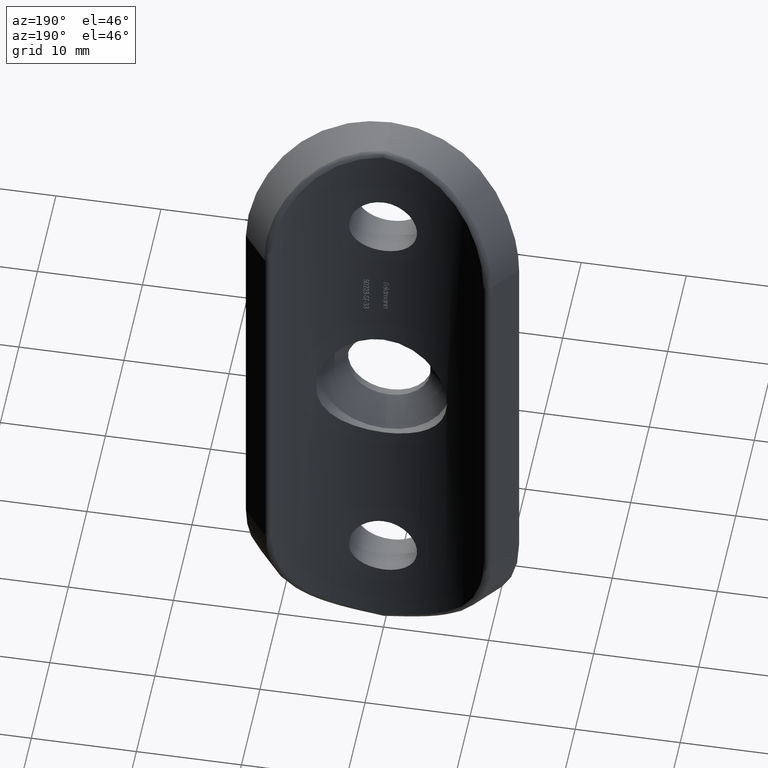
[diagram: clean part render]
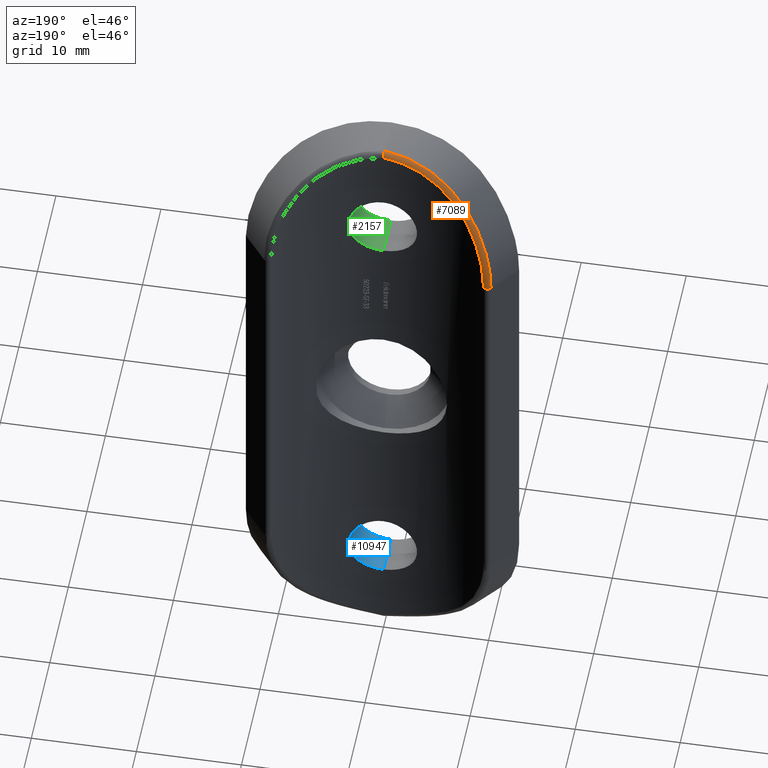
[diagram: same view with three faces highlighted in distinct colors, each labeled with its STEP entity id]
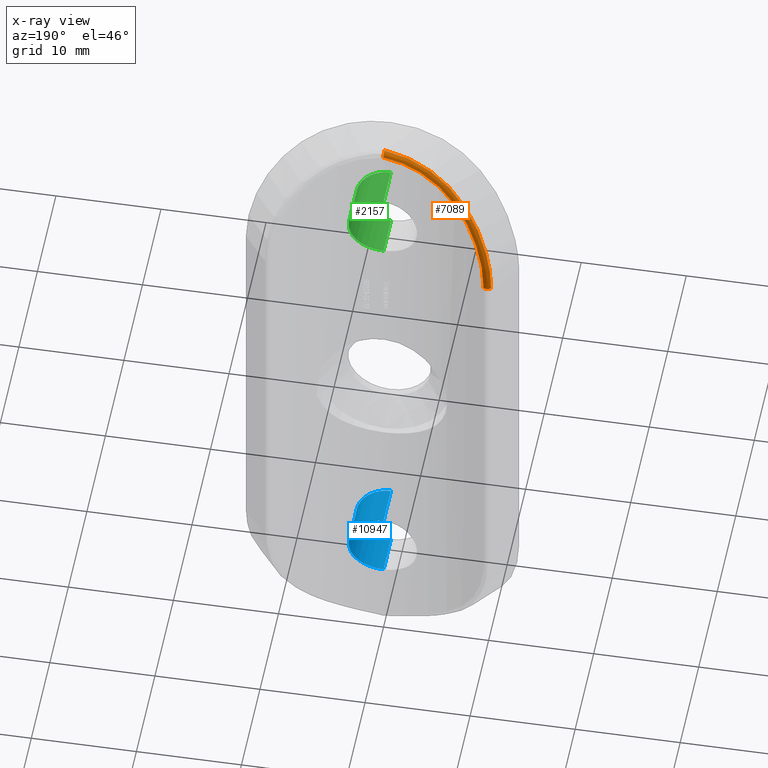
[diagram: x-ray of the same camera — body ghosted, the three highlighted faces saturated]
A machine part, auxiliary view with three faces highlighted in distinct colors.
The next image is the same camera in x-ray (body ghosted, the three faces saturated) — at least one of them is partly hidden behind the body in this view.
Their STEP definitions:

[orange] entity #7089 — the highlighted face is a freeform B-spline surface patch.
#102 = CARTESIAN_POINT ( 'NONE',  ( -10.50542401011249200, 3.063671795485446700, 21.65529988678079600 ) ) ;
#215 = CARTESIAN_POINT ( 'NONE',  ( -7.657741951941266800, 1.838490443010462700, 26.60097893343888100 ) ) ;
#316 = CARTESIAN_POINT ( 'NONE',  ( -4.579778438270211400, 0.6295548859780323300, 29.78389970412767300 ) ) ;
#372 = CARTESIAN_POINT ( 'NONE',  ( -3.422654643863040300, 0.3376383876296346600, 29.90986434996787600 ) ) ;
#500 = VERTEX_POINT ( 'NONE', #15882 ) ;
#855 = CARTESIAN_POINT ( 'NONE',  ( -2.597937439898376000E-015, -0.4467435717366383700, 31.30982976342494000 ) ) ;
#913 = CARTESIAN_POINT ( 'NONE',  ( -2.171602479656851800E-015, -0.3237194835606613800, 31.29656352088514700 ) ) ;
#1026 = CARTESIAN_POINT ( 'NONE',  ( -7.522032440449962100, 1.297400226740585700, 27.73417490612284900 ) ) ;
#1079 = CARTESIAN_POINT ( 'NONE',  ( -1.846733640083023200, 0.09762646665172514100, 30.43474698371177200 ) ) ;
#1356 = CARTESIAN_POINT ( 'NONE',  ( -10.57863874613654400, 3.116991917142108100, 21.26812226384251800 ) ) ;
#1405 = CARTESIAN_POINT ( 'NONE',  ( -8.836255831279709500, 1.987313562921437300, 25.97782790389367200 ) ) ;
#1449 = CARTESIAN_POINT ( 'NONE',  ( -7.243769097079940900, 1.624691553841475000, 27.74698774960022600 ) ) ;
#1555 = CARTESIAN_POINT ( 'NONE',  ( -4.720400433272002900, 0.2502373476705647100, 29.85487967771019100 ) ) ;
#1719 = CARTESIAN_POINT ( 'NONE',  ( -6.471255699017784300, 1.280634153719106200, 27.95149765232125800 ) ) ;
#1767 = CARTESIAN_POINT ( 'NONE',  ( -4.556471330923205700E-015, 4.615047846176784400E-015, 30.80803666801636400 ) ) ;
#1889 = EDGE_CURVE ( 'NONE', #13368, #7156, #10970, .T. ) ;
#1936 = CARTESIAN_POINT ( 'NONE',  ( -10.06945631784989500, 3.339065383046127400, 20.00008854178766200 ) ) ;
#2100 = CARTESIAN_POINT ( 'NONE',  ( 2.933447312074207800E-012, 2.068454457195001400E-015, 30.93001358093419400 ) ) ;
#2156 = CARTESIAN_POINT ( 'NONE',  ( -10.51140021667998600, 3.068001273967808200, 21.62516512265614900 ) ) ;
#2209 = CARTESIAN_POINT ( 'NONE',  ( -0.7868395231680609400, -0.4217079465087668100, 31.18895971245693100 ) ) ;
#2320 = CARTESIAN_POINT ( 'NONE',  ( -6.112986192635482900, 0.7093041458289913700, 28.96982297826615100 ) ) ;
#2418 = CARTESIAN_POINT ( 'NONE',  ( -7.754350745516794600, 1.888271786053462600, 26.46997945896566100 ) ) ;
#2483 = CARTESIAN_POINT ( 'NONE',  ( -8.270840031687647800, 2.167795911508581000, 25.69021913844330400 ) ) ;
#2486 = CARTESIAN_POINT ( 'NONE',  ( -1.481062514297379500, 0.06117253351766602900, 30.52910405572964300 ) ) ;
#2540 = CARTESIAN_POINT ( 'NONE',  ( -9.570425809902650000, 2.981053932900903400, 22.64081043374984500 ) ) ;
#2642 = CARTESIAN_POINT ( 'NONE',  ( -8.411996351251383800, 1.752160943769651900, 26.61597519465137700 ) ) ;
#2703 = CARTESIAN_POINT ( 'NONE',  ( -10.51036055112209800, 3.670818861441039500, 19.30412672984970600 ) ) ;
#2776 = AXIS2_PLACEMENT_3D ( 'NONE', #9919, #11157, #7470 ) ;
#2799 = CARTESIAN_POINT ( 'NONE',  ( -0.6324098689838358900, -0.004766189862007008000, 31.16891046781860900 ) ) ;
#2863 = CARTESIAN_POINT ( 'NONE',  ( -1.389573273625275100, 0.04047565808136791700, 31.01049649881727200 ) ) ;
#3507 = CARTESIAN_POINT ( 'NONE',  ( -10.75540627910053200, 3.246948536607695300, 20.08203606642703300 ) ) ;
#3722 = CARTESIAN_POINT ( 'NONE',  ( -6.920154379199530600, 1.023490903975220700, 28.32955755852804500 ) ) ;
#3771 = CARTESIAN_POINT ( 'NONE',  ( -9.298541344922146100, 2.786203570421051300, 24.61150453662954300 ) ) ;
#3883 = CARTESIAN_POINT ( 'NONE',  ( -10.75427619857146200, 3.246077524185170000, 20.09749010482571300 ) ) ;
#3925 = B_SPLINE_CURVE_WITH_KNOTS ( 'NONE', 3,
 ( #855, #913, #8312, #11974, #2100, #11926 ),
 .UNSPECIFIED., .F., .F.,
 ( 4, 2, 4 ),
 ( 3.794707603699265500E-019, 0.0003659181673830896600, 0.0007318363347661790000 ),
 .UNSPECIFIED. ) ;
#3931 = CARTESIAN_POINT ( 'NONE',  ( -9.235346447690687900, 2.753768703268791200, 23.71804811434477100 ) ) ;
#4090 = CARTESIAN_POINT ( 'NONE',  ( -5.710305622408278700, 0.5636021547520185800, 29.25694985364507500 ) ) ;
#4172 = EDGE_CURVE ( 'NONE', #7157, #500, #4354, .T. ) ;
#4354 = B_SPLINE_CURVE_WITH_KNOTS ( 'NONE', 3,
 ( #11935, #15766, #2209, #9476, #11982, #5893, #10865, #7016, #13102, #14505, #2320, #4642, #1026, #8371, #5948, #9691, #9633, #14455, #4590, #7069, #12091, #2156, #13207, #3507, #14404, #15653 ),
 .UNSPECIFIED., .F., .F.,
 ( 4, 2, 2, 2, 2, 2, 2, 2, 2, 2, 2, 2, 4 ),
 ( 2.845133323627126100E-019, 0.001192473253158539800, 0.002384946506317079600, 0.004769893012634158400, 0.005962366265792695300, 0.007154839518951230600, 0.009539786025268301100, 0.01073225927842683300, 0.01192473253158536500, 0.01430967903790242000, 0.01550215229106094300, 0.01669462554421946600, 0.01907957205053651900 ),
 .UNSPECIFIED. ) ;
#4418 = ORIENTED_EDGE ( 'NONE', *, *, #1889, .F. ) ;
#4420 = CARTESIAN_POINT ( 'NONE',  ( -9.912654814677164700, 3.224069730281532700, 21.10132444959511800 ) ) ;
#4590 = CARTESIAN_POINT ( 'NONE',  ( -9.883876483705217100, 2.631715138342525700, 23.87722691772919200 ) ) ;
#4642 = CARTESIAN_POINT ( 'NONE',  ( -6.993355885137084700, 1.055335429611858900, 28.26161717247504500 ) ) ;
#4732 = CARTESIAN_POINT ( 'NONE',  ( -8.346506597353021900, 2.210792286257803800, 25.56226487515342100 ) ) ;
#4793 = CARTESIAN_POINT ( 'NONE',  ( -0.7457229633567512600, 0.01247728635560468900, 30.68876922061339100 ) ) ;
#4867 =( BOUNDED_SURFACE ( )  B_SPLINE_SURFACE ( 3, 2, ( 
 ( #14718, #11288, #8599 ),
 ( #8820, #2703, #11138 ),
 ( #3883, #13471, #5050 ),
 ( #1356, #14836, #13520 ),
 ( #102, #11192, #4884 ),
 ( #7449, #9901, #9849 ),
 ( #12461, #10065, #2540 ),
 ( #13639, #14887, #3931 ),
 ( #6157, #3771, #14942 ),
 ( #7335, #7498, #12348 ),
 ( #1405, #10017, #2483 ),
 ( #2642, #11239, #5098 ),
 ( #13692, #6324, #215 ),
 ( #15986, #1449, #11072 ),
 ( #3722, #7766, #1719 ),
 ( #12610, #8974, #14997 ),
 ( #4090, #11552, #13845 ),
 ( #8919, #6480, #6420 ),
 ( #1555, #316, #7661 ),
 ( #12671, #15206, #372 ),
 ( #10226, #10116, #10179 ),
 ( #13953, #2863, #5250 ),
 ( #15046, #2799, #12509 ),
 ( #13795, #15094, #10275 ) ),
 .UNSPECIFIED., .F., .F., .T. ) 
 B_SPLINE_SURFACE_WITH_KNOTS ( ( 4, 2, 2, 2, 2, 2, 2, 2, 2, 2, 2, 4 ),
 ( 3, 3 ),
 ( 0.0000000000000000000, 0.002289601953581581800, 0.003434402930372372500, 0.004579203907163163600, 0.006868805860744745000, 0.008013606837535537000, 0.009158407814326327200, 0.01144800976790790900, 0.01259281074469870000, 0.01373761172148949000, 0.01602721367507107400, 0.01831681562865265400 ),
 ( 0.0000000000000000000, 1.000000000000000000 ),
 .UNSPECIFIED. ) 
 GEOMETRIC_REPRESENTATION_ITEM ( )  RATIONAL_B_SPLINE_SURFACE ( (
 ( 1.000000000000000000, 0.7172232720025325500, 1.000000000000000000),
 ( 1.000000000000000000, 0.7172178968168048100, 1.000000000000000000),
 ( 1.000000000000000000, 0.7186244166119003500, 1.000000000000000000),
 ( 1.000000000000000000, 0.7225000310353157900, 1.000000000000000000),
 ( 1.000000000000000000, 0.7240849017504890100, 1.000000000000000000),
 ( 1.000000000000000000, 0.7277539859926843700, 1.000000000000000000),
 ( 1.000000000000000000, 0.7298510948293278600, 1.000000000000000000),
 ( 1.000000000000000000, 0.7366079396922431400, 1.000000000000000000),
 ( 1.000000000000000000, 0.7417298801628077200, 1.000000000000000000),
 ( 1.000000000000000000, 0.7493937746239642800, 1.000000000000000000),
 ( 1.000000000000000000, 0.7519446449235727100, 1.000000000000000000),
 ( 1.000000000000000000, 0.7568670787457672000, 1.000000000000000000),
 ( 1.000000000000000000, 0.7592314800679399500, 1.000000000000000000),
 ( 1.000000000000000000, 0.7656365837914578300, 1.000000000000000000),
 ( 1.000000000000000000, 0.7690467701978924700, 1.000000000000000000),
 ( 1.000000000000000000, 0.7720144167513015600, 1.000000000000000000),
 ( 1.000000000000000000, 0.7726468596381184100, 1.000000000000000000),
 ( 1.000000000000000000, 0.7730514819022662500, 1.000000000000000000),
 ( 1.000000000000000000, 0.7728254896145924100, 1.000000000000000000),
 ( 1.000000000000000000, 0.7708068797252919400, 1.000000000000000000),
 ( 1.000000000000000000, 0.7676686342806758900, 1.000000000000000000),
 ( 1.000000000000000000, 0.7576498658470708400, 1.000000000000000000),
 ( 1.000000000000000000, 0.7508761609326483100, 1.000000000000000000),
 ( 1.000000000000000000, 0.7427412373925796900, 1.000000000000000000) ) ) 
 REPRESENTATION_ITEM ( '' )  SURFACE ( )  );
#4884 = CARTESIAN_POINT ( 'NONE',  ( -9.834196199454734000, 3.167112261531432400, 21.53394219886337900 ) ) ;
#5050 = CARTESIAN_POINT ( 'NONE',  ( -10.06687374878371200, 3.337081388666325800, 20.03604817772395200 ) ) ;
#5098 = CARTESIAN_POINT ( 'NONE',  ( -7.872775487280621000, 1.950559814115348200, 26.30382230246540200 ) ) ;
#5220 = ORIENTED_EDGE ( 'NONE', *, *, #13195, .T. ) ;
#5224 = ORIENTED_EDGE ( 'NONE', *, *, #4172, .F. ) ;
#5250 = CARTESIAN_POINT ( 'NONE',  ( -1.300917104330655100, 0.03472391313829665400, 30.58802986198054100 ) ) ;
#5732 = FACE_OUTER_BOUND ( 'NONE', #14368, .T. ) ;
#5893 = CARTESIAN_POINT ( 'NONE',  ( -3.081347760467123600, -0.1503958083531978000, 30.59770263791105900 ) ) ;
#5948 = CARTESIAN_POINT ( 'NONE',  ( -8.459104589948713800, 1.777631885677609200, 26.54932674287762900 ) ) ;
#6157 = CARTESIAN_POINT ( 'NONE',  ( -9.569250911675970500, 2.424936653971198300, 24.63734634396684700 ) ) ;
#6324 = CARTESIAN_POINT ( 'NONE',  ( -7.946963378025595000, 1.985840522207297000, 26.88128597326289400 ) ) ;
#6420 = CARTESIAN_POINT ( 'NONE',  ( -4.716141415323913400, 0.6702387320406150200, 29.23814694795537500 ) ) ;
#6480 = CARTESIAN_POINT ( 'NONE',  ( -4.906777291359168700, 0.7255826926429163000, 29.59746754341902200 ) ) ;
#6857 = CARTESIAN_POINT ( 'NONE',  ( -9.595389920162261900, 2.998365812492525000, 22.55007719834674900 ) ) ;
#7016 = CARTESIAN_POINT ( 'NONE',  ( -4.825879269697544800, 0.2807642902636742800, 29.79759421073650600 ) ) ;
#7069 = CARTESIAN_POINT ( 'NONE',  ( -10.23505599943294300, 2.871902928979813000, 22.76566226678346900 ) ) ;
#7089 = ADVANCED_FACE ( 'NONE', ( #5732 ), #4867, .T. ) ;
#7156 = VERTEX_POINT ( 'NONE', #1767 ) ;
#7157 = VERTEX_POINT ( 'NONE', #11910 ) ;
#7232 = CARTESIAN_POINT ( 'NONE',  ( -6.600083224448398200, 1.335242850766885000, 27.82882534629755600 ) ) ;
#7335 = CARTESIAN_POINT ( 'NONE',  ( -9.031299304511554400, 2.100778485240629900, 25.64946696455961800 ) ) ;
#7449 = CARTESIAN_POINT ( 'NONE',  ( -10.32817874602904200, 2.937321799344095200, 22.42347186360046900 ) ) ;
#7470 = DIRECTION ( 'NONE',  ( 1.000000000000000000, 0.0000000000000000000, 0.0000000000000000000 ) ) ;
#7498 = CARTESIAN_POINT ( 'NONE',  ( -8.772713109572915600, 2.457660370344418400, 25.61824024520343100 ) ) ;
#7661 = CARTESIAN_POINT ( 'NONE',  ( -4.399199676245086000, 0.5809471721389075600, 29.41815353591571700 ) ) ;
#7766 = CARTESIAN_POINT ( 'NONE',  ( -6.719587745145752000, 1.382932435439599300, 28.26998476491975500 ) ) ;
#8144 = CARTESIAN_POINT ( 'NONE',  ( -4.888332787101527200, 0.7109057376614124100, 29.15559705008147500 ) ) ;
#8312 = CARTESIAN_POINT ( 'NONE',  ( -8.275577517794562600E-015, -0.2087632683938588100, 31.23641826399800100 ) ) ;
#8371 = CARTESIAN_POINT ( 'NONE',  ( -8.234141121959526200, 1.657444517457095100, 26.85767709123361200 ) ) ;
#8436 = CARTESIAN_POINT ( 'NONE',  ( -7.962761078081461700, 1.998568726242664100, 26.17244299000459400 ) ) ;
#8599 = CARTESIAN_POINT ( 'NONE',  ( -10.12198592462096000, 3.378997775155141900, 18.50000000000000400 ) ) ;
#8820 = CARTESIAN_POINT ( 'NONE',  ( -10.81325278671451600, 3.291015370992040900, 19.30497645946537900 ) ) ;
#8919 = CARTESIAN_POINT ( 'NONE',  ( -5.056518827220583200, 0.3499715371976944200, 29.66767282546399500 ) ) ;
#8974 = CARTESIAN_POINT ( 'NONE',  ( -5.848310167938258500, 1.042709693634877400, 28.96950588692877900 ) ) ;
#9299 = CARTESIAN_POINT ( 'NONE',  ( -10.12198592462095800, 3.378997775155142800, 19.25546580223837600 ) ) ;
#9476 = CARTESIAN_POINT ( 'NONE',  ( -1.562607954736173100, -0.3590787525489972400, 31.02669542825151800 ) ) ;
#9633 = CARTESIAN_POINT ( 'NONE',  ( -9.065984262955375100, 2.121253853727200300, 25.58827309608811600 ) ) ;
#9688 = CARTESIAN_POINT ( 'NONE',  ( -8.522674774931411800, 2.313076423829262000, 25.24889058835769300 ) ) ;
#9691 = CARTESIAN_POINT ( 'NONE',  ( -8.874810467235942500, 2.009469455502230800, 25.91466500015651400 ) ) ;
#9731 = CARTESIAN_POINT ( 'NONE',  ( -0.3744895071534930000, 2.492441504681737300E-015, 30.75458467671060300 ) ) ;
#9798 = CARTESIAN_POINT ( 'NONE',  ( -5.501661426244781200, 0.9126065644254293100, 28.74676221234048900 ) ) ;
#9849 = CARTESIAN_POINT ( 'NONE',  ( -9.668406360721356000, 3.049465582925196200, 22.27256909958014900 ) ) ;
#9852 = CARTESIAN_POINT ( 'NONE',  ( -4.556471330923205700E-015, 4.615047846176784400E-015, 30.80803666801636400 ) ) ;
#9901 = CARTESIAN_POINT ( 'NONE',  ( -10.03668565054309700, 3.307438633750475500, 22.41413421232043400 ) ) ;
#9919 = CARTESIAN_POINT ( 'NONE',  ( -10.42234159003998100, 2.979264771450548000, 18.50000000000000400 ) ) ;
#10017 = CARTESIAN_POINT ( 'NONE',  ( -8.582869354238898300, 2.343404614293666200, 25.94357915095951100 ) ) ;
#10065 = CARTESIAN_POINT ( 'NONE',  ( -9.934594831054321100, 3.232282931469230300, 22.79521228999751900 ) ) ;
#10116 = CARTESIAN_POINT ( 'NONE',  ( -2.864804414330927300, 0.2283720103839356200, 30.57086913981392200 ) ) ;
#10179 = CARTESIAN_POINT ( 'NONE',  ( -2.737412035724484700, 0.2081109685110015000, 30.17341123503760200 ) ) ;
#10226 = CARTESIAN_POINT ( 'NONE',  ( -2.959979937964901900, -0.1729961238918771000, 30.64034768497955600 ) ) ;
#10275 = CARTESIAN_POINT ( 'NONE',  ( 0.1702742995689315900, 0.0008603583771585581600, 30.83146303272702200 ) ) ;
#10865 = CARTESIAN_POINT ( 'NONE',  ( -3.801099899317010900, 0.002709856565700170800, 30.31731089620751300 ) ) ;
#10903 = CIRCLE ( 'NONE', #2776, 0.5000000000000004400 ) ;
#10970 = B_SPLINE_CURVE_WITH_KNOTS ( 'NONE', 3,
 ( #14184, #9299, #1936, #4420, #12979, #14232, #6857, #13473, #15819, #9688, #4732, #8436, #2418, #12140, #7232, #9798, #8144, #12188, #15988, #1079, #2486, #4793, #9731, #9852 ),
 .UNSPECIFIED., .F., .F.,
 ( 4, 2, 2, 2, 2, 2, 2, 2, 2, 2, 2, 4 ),
 ( 0.0000000000000000000, 0.002236383853707283000, 0.003354575780560924800, 0.004472767707414566900, 0.006709151561121859900, 0.007827343487975507700, 0.008945535414829156400, 0.01118191926853644900, 0.01341830312224374100, 0.01565468697595103300, 0.01677287890280467600, 0.01789107082965832300 ),
 .UNSPECIFIED. ) ;
#11072 = CARTESIAN_POINT ( 'NONE',  ( -6.976948467911902300, 1.503977257786310600, 27.44484567509369600 ) ) ;
#11138 = CARTESIAN_POINT ( 'NONE',  ( -10.12198592396895000, 3.378997774665228000, 19.27401582640405300 ) ) ;
#11157 = DIRECTION ( 'NONE',  ( 0.0000000000000000000, -0.0000000000000000000, 1.000000000000000000 ) ) ;
#11192 = CARTESIAN_POINT ( 'NONE',  ( -10.20976218980366600, 3.436998772956644500, 21.64877457385227200 ) ) ;
#11239 = CARTESIAN_POINT ( 'NONE',  ( -8.169889626968577900, 2.107414113531276300, 26.57531389448242400 ) ) ;
#11288 = CARTESIAN_POINT ( 'NONE',  ( -10.51036055180890500, 3.670818861980146500, 18.50000000000000400 ) ) ;
#11552 = CARTESIAN_POINT ( 'NONE',  ( -5.542156880456492000, 0.9324806301944466000, 29.18968735159209200 ) ) ;
#11910 = CARTESIAN_POINT ( 'NONE',  ( -2.597937439898376000E-015, -0.4467435717366383700, 31.30982976342494000 ) ) ;
#11926 = CARTESIAN_POINT ( 'NONE',  ( -4.556471330923205700E-015, 4.615047846176784400E-015, 30.80803666801636400 ) ) ;
#11935 = CARTESIAN_POINT ( 'NONE',  ( -2.597937439898376000E-015, -0.4467435717366383700, 31.30982976342494000 ) ) ;
#11974 = CARTESIAN_POINT ( 'NONE',  ( -1.438220869642109700E-014, -0.04603401132574915600, 31.05288523145570100 ) ) ;
#11982 = CARTESIAN_POINT ( 'NONE',  ( -1.948181270716177900, -0.3152336200101892300, 30.93077029224297500 ) ) ;
#12091 = CARTESIAN_POINT ( 'NONE',  ( -10.33766963107329700, 2.944024006175847600, 22.38621379679843700 ) ) ;
#12140 = CARTESIAN_POINT ( 'NONE',  ( -7.092860794990611100, 1.557619797007127500, 27.31732193726444500 ) ) ;
#12188 = CARTESIAN_POINT ( 'NONE',  ( -3.599116538345443300, 0.3753976925234880900, 29.83351066809676100 ) ) ;
#12348 = CARTESIAN_POINT ( 'NONE',  ( -8.453743412148952500, 2.272791871619924900, 25.37448746590397200 ) ) ;
#12461 = CARTESIAN_POINT ( 'NONE',  ( -10.22345054453335700, 2.863817567760110100, 22.80644285116653000 ) ) ;
#12509 = CARTESIAN_POINT ( 'NONE',  ( -0.5657260631967993000, -0.006577525628671035200, 30.73396282970999500 ) ) ;
#12610 = CARTESIAN_POINT ( 'NONE',  ( -6.024998771973946200, 0.6766017877171638400, 29.03505623143627900 ) ) ;
#12671 = CARTESIAN_POINT ( 'NONE',  ( -3.685407945602754000, -0.02379341129966897400, 30.36625892325089600 ) ) ;
#12979 = CARTESIAN_POINT ( 'NONE',  ( -9.847265775228585500, 3.176547642491378600, 21.46576991504872800 ) ) ;
#13102 = CARTESIAN_POINT ( 'NONE',  ( -5.158307885413866400, 0.3815381655267475700, 29.60779361770762100 ) ) ;
#13195 = EDGE_CURVE ( 'NONE', #13368, #500, #10903, .T. ) ;
#13207 = CARTESIAN_POINT ( 'NONE',  ( -10.58318446594495500, 3.120313476255776900, 21.24161290630414800 ) ) ;
#13368 = VERTEX_POINT ( 'NONE', #15014 ) ;
#13471 = CARTESIAN_POINT ( 'NONE',  ( -10.45309563228257600, 3.624731946679251600, 20.09294135705126300 ) ) ;
#13473 = CARTESIAN_POINT ( 'NONE',  ( -9.274271414462187800, 2.779552271914679900, 23.61007983579747100 ) ) ;
#13520 = CARTESIAN_POINT ( 'NONE',  ( -9.902658488902956100, 3.216788383884822800, 21.16165602292204200 ) ) ;
#13639 = CARTESIAN_POINT ( 'NONE',  ( -9.865429158276731100, 2.619421290826583700, 23.92677003878517900 ) ) ;
#13692 = CARTESIAN_POINT ( 'NONE',  ( -8.182918402954738800, 1.630654374352166400, 26.92501809093771200 ) ) ;
#13758 = ORIENTED_EDGE ( 'NONE', *, *, #15399, .T. ) ;
#13795 = CARTESIAN_POINT ( 'NONE',  ( 0.1113509854362853300, -0.4480934571586316900, 31.32472155403610300 ) ) ;
#13845 = CARTESIAN_POINT ( 'NONE',  ( -5.332269976822561700, 0.8627062505323043200, 28.84322101272642800 ) ) ;
#13953 = CARTESIAN_POINT ( 'NONE',  ( -1.441213618364229500, -0.3831453118543290400, 31.07155105591930800 ) ) ;
#14184 = CARTESIAN_POINT ( 'NONE',  ( -10.12198592462096000, 3.378997775155142300, 18.50000000000000400 ) ) ;
#14232 = CARTESIAN_POINT ( 'NONE',  ( -9.688907745390292100, 3.063883457537348600, 22.18928936296726200 ) ) ;
#14368 = EDGE_LOOP ( 'NONE', ( #5220, #5224, #13758, #4418 ) ) ;
#14404 = CARTESIAN_POINT ( 'NONE',  ( -10.81325278673134700, 3.291015370970928000, 19.29716980078726600 ) ) ;
#14455 = CARTESIAN_POINT ( 'NONE',  ( -9.593368464452533200, 2.440443406201452600, 24.58266391671368500 ) ) ;
#14505 = CARTESIAN_POINT ( 'NONE',  ( -5.804277073753969100, 0.5966063912151944300, 29.19240259793340200 ) ) ;
#14718 = CARTESIAN_POINT ( 'NONE',  ( -10.81325278673135100, 3.291015370970930200, 18.50000000000000400 ) ) ;
#14836 = CARTESIAN_POINT ( 'NONE',  ( -10.28116900110255500, 3.491707050122982100, 21.26298853632784300 ) ) ;
#14887 = CARTESIAN_POINT ( 'NONE',  ( -9.586339429927681600, 2.983501109313676300, 23.90615105486064700 ) ) ;
#14942 = CARTESIAN_POINT ( 'NONE',  ( -8.958007187360559300, 2.573105897379337000, 24.40129456154405900 ) ) ;
#14997 = CARTESIAN_POINT ( 'NONE',  ( -5.628651551261434300, 0.9650784544325112800, 28.62986176105120300 ) ) ;
#15014 = CARTESIAN_POINT ( 'NONE',  ( -10.12198592462096000, 3.378997775155142300, 18.50000000000000400 ) ) ;
#15046 = CARTESIAN_POINT ( 'NONE',  ( -0.6648607727063652300, -0.4410943268175607200, 31.22332240222486600 ) ) ;
#15094 = CARTESIAN_POINT ( 'NONE',  ( 0.1127630105563072100, 0.0002791598909320392600, 31.27852685541859400 ) ) ;
#15206 = CARTESIAN_POINT ( 'NONE',  ( -3.573227225698849100, 0.3679029333377714700, 30.29449419355216800 ) ) ;
#15399 = EDGE_CURVE ( 'NONE', #7157, #7156, #3925, .T. ) ;
#15653 = CARTESIAN_POINT ( 'NONE',  ( -10.81325278673135100, 3.291015370970932000, 18.50000000000000400 ) ) ;
#15766 = CARTESIAN_POINT ( 'NONE',  ( -0.3951719370108162700, -0.4407258731421472800, 31.25574721689305200 ) ) ;
#15819 = CARTESIAN_POINT ( 'NONE',  ( -9.007963226666396000, 2.604943733991443200, 24.28472510104709400 ) ) ;
#15882 = CARTESIAN_POINT ( 'NONE',  ( -10.81325278673135100, 3.291015370970932000, 18.50000000000000400 ) ) ;
#15986 = CARTESIAN_POINT ( 'NONE',  ( -7.458067990188364000, 1.267190414305210800, 27.80263950177489800 ) ) ;
#15988 = CARTESIAN_POINT ( 'NONE',  ( -2.918874630944279700, 0.2390864958669776700, 30.10809533124733100 ) ) ;

[blue] entity #10947 — the highlighted cylindrical surface (edge-blend (fillet) strip) has radius 3.25 mm, axis along (-0, -1, -0).
#512 = CARTESIAN_POINT ( 'NONE',  ( 3.084215943911794000, -3.770788221992580800, -20.45331265347945000 ) ) ;
#566 = CARTESIAN_POINT ( 'NONE',  ( 2.148963806582265600, -3.889506302244738500, -23.94729595072838900 ) ) ;
#584 = CARTESIAN_POINT ( 'NONE',  ( 3.249916974005196300, 0.3163815312802751900, -21.71380004086898200 ) ) ;
#738 = CARTESIAN_POINT ( 'NONE',  ( 3.084022282978942100, 0.2844274000123504500, -20.45271370822382600 ) ) ;
#909 = CARTESIAN_POINT ( 'NONE',  ( -2.762642140799273700E-018, 3.968435340926187700E-015, -24.74999999999999600 ) ) ;
#1750 = CARTESIAN_POINT ( 'NONE',  ( 2.448240329348330100, -3.856310303687669800, -23.64788784674724200 ) ) ;
#1898 = B_SPLINE_CURVE_WITH_KNOTS ( 'NONE', 3,
 ( #11655, #15468, #3170, #10434, #12878, #14173, #14277, #11712, #10539, #5657, #3018, #6791, #15526, #12826, #8139, #1929, #584, #8091, #5462, #15369, #738, #9196, #9247, #3227, #4465, #15310, #8038, #11802, #11605, #14072, #9341, #5516, #14123, #4253 ),
 .UNSPECIFIED., .F., .F.,
 ( 4, 2, 2, 2, 2, 2, 2, 2, 2, 2, 2, 2, 2, 2, 2, 2, 4 ),
 ( 5.553181542104702200E-019, 0.0006365549220129357300, 0.001273109844025871000, 0.001909664766038806100, 0.002546219688051741200, 0.003182774610064676500, 0.003819329532077611400, 0.004455884454090547500, 0.005092439376103482400, 0.005728994298116417200, 0.006365549220129353000, 0.007002104142142287800, 0.007638659064155222700, 0.008275213986168157600, 0.008911768908181093300, 0.009548323830194027300, 0.01018487875220696300 ),
 .UNSPECIFIED. ) ;
#1929 = CARTESIAN_POINT ( 'NONE',  ( 3.229188161827141600, 0.3122656646793284800, -21.92502909074561400 ) ) ;
#2207 = CARTESIAN_POINT ( 'NONE',  ( 2.449569028166926500, -3.856166097471422000, -19.35338486506630700 ) ) ;
#2668 = ORIENTED_EDGE ( 'NONE', *, *, #8393, .F. ) ;
#2997 = CARTESIAN_POINT ( 'NONE',  ( 2.819403693953583800, -3.808836470937247800, -19.86959481664365200 ) ) ;
#3018 = CARTESIAN_POINT ( 'NONE',  ( 2.582499226653275100, 0.1986432690838977100, -23.48465118164262900 ) ) ;
#3170 = CARTESIAN_POINT ( 'NONE',  ( 0.4268591415952834900, 0.004121049460302217200, -24.72882231635892900 ) ) ;
#3227 = CARTESIAN_POINT ( 'NONE',  ( 2.584018455900052300, 0.1988880537411806000, -19.51756294124301400 ) ) ;
#3554 = CARTESIAN_POINT ( 'NONE',  ( 1.047746819308112500, -3.974589590997900300, -18.41616539157603300 ) ) ;
#4206 = VECTOR ( 'NONE', #4992, 1000.000000000000000 ) ;
#4232 = CARTESIAN_POINT ( 'NONE',  ( 2.582649714299361900, -3.839774590044871900, -23.48445838258861000 ) ) ;
#4253 = CARTESIAN_POINT ( 'NONE',  ( 3.980098594322145600E-016, 4.466214108995553400E-015, -18.25000000000000000 ) ) ;
#4465 = CARTESIAN_POINT ( 'NONE',  ( 2.449063118649708000, 0.1782317133173334200, -19.35284969890806300 ) ) ;
#4849 = ORIENTED_EDGE ( 'NONE', *, *, #8104, .F. ) ;
#4992 = DIRECTION ( 'NONE',  ( -0.0000000000000000000, -1.000000000000000000, -0.0000000000000000000 ) ) ;
#5164 = LINE ( 'NONE', #14083, #11882 ) ;
#5442 = CARTESIAN_POINT ( 'NONE',  ( 3.083126816990124500, -3.770949099061572200, -22.54958031974102900 ) ) ;
#5462 = CARTESIAN_POINT ( 'NONE',  ( 3.228814249753963600, 0.3121931676417376600, -21.07278723464822100 ) ) ;
#5516 = CARTESIAN_POINT ( 'NONE',  ( 0.4281039025982681900, 0.004142981129772053800, -18.27128847116262400 ) ) ;
#5657 = CARTESIAN_POINT ( 'NONE',  ( 2.448156607284309900, 0.1781134253215617100, -23.64796392798255600 ) ) ;
#5997 = CARTESIAN_POINT ( 'NONE',  ( 2.146775501657099300, -3.889745847654800100, -19.05057151425766900 ) ) ;
#6356 = CARTESIAN_POINT ( 'NONE',  ( 1.048981491134561000, -3.974528303007413200, -24.58342433557345400 ) ) ;
#6459 = CARTESIAN_POINT ( 'NONE',  ( -4.238000013752025800E-016, -4.000000000000000000, -24.74999999999999600 ) ) ;
#6566 = CARTESIAN_POINT ( 'NONE',  ( 0.2150880331843095200, -4.000000000000000000, -24.75000000000000000 ) ) ;
#6614 = CARTESIAN_POINT ( 'NONE',  ( 1.628999625832026100, -3.937021402022201900, -24.32027212294185900 ) ) ;
#6670 = CARTESIAN_POINT ( 'NONE',  ( 2.820230869257575700, -3.808730599379132700, -23.12924904882078200 ) ) ;
#6791 = CARTESIAN_POINT ( 'NONE',  ( 2.820078761738545200, 0.2372296406204138800, -23.12950862104238000 ) ) ;
#6964 = EDGE_CURVE ( 'NONE', #10254, #15633, #13920, .T. ) ;
#7168 = DIRECTION ( 'NONE',  ( -0.0000000000000000000, -1.000000000000000000, -0.0000000000000000000 ) ) ;
#7445 = CARTESIAN_POINT ( 'NONE',  ( 3.980102097228894800E-016, -5.000000000000000000, -18.25000000000000400 ) ) ;
#7835 = LINE ( 'NONE', #7445, #4206 ) ;
#7860 = CARTESIAN_POINT ( 'NONE',  ( 3.228858312758157400, -3.748513142941283200, -21.07315900897500400 ) ) ;
#7872 = EDGE_CURVE ( 'NONE', #9026, #10254, #5164, .T. ) ;
#7912 = CARTESIAN_POINT ( 'NONE',  ( 1.982061062768914800, -3.906332346841657100, -24.08437779201478400 ) ) ;
#7942 = DIRECTION ( 'NONE',  ( -0.0000000000000000000, -1.000000000000000000, -0.0000000000000000000 ) ) ;
#8038 = CARTESIAN_POINT ( 'NONE',  ( 1.983235862894686500, 0.1161858091227481700, -18.91658847300226000 ) ) ;
#8091 = CARTESIAN_POINT ( 'NONE',  ( 3.250082532967418100, 0.3164140751010353600, -21.28873162966796400 ) ) ;
#8104 = EDGE_CURVE ( 'NONE', #9822, #15633, #7835, .T. ) ;
#8139 = CARTESIAN_POINT ( 'NONE',  ( 3.145563945726086400, 0.2961563196495979300, -22.34482742368648200 ) ) ;
#8393 = EDGE_CURVE ( 'NONE', #9026, #9822, #1898, .T. ) ;
#9026 = VERTEX_POINT ( 'NONE', #909 ) ;
#9122 = CARTESIAN_POINT ( 'NONE',  ( 2.921072285740917300, -3.794530306752537100, -20.05941710008681500 ) ) ;
#9196 = CARTESIAN_POINT ( 'NONE',  ( 2.920678573547287500, 0.2548493324889031200, -20.05859835962535000 ) ) ;
#9247 = CARTESIAN_POINT ( 'NONE',  ( 2.819100650847185200, 0.2370727459707379400, -19.86908627059610000 ) ) ;
#9341 = CARTESIAN_POINT ( 'NONE',  ( 0.8457604668145783900, 0.01994174447358676400, -18.35475909974436700 ) ) ;
#9416 = FACE_OUTER_BOUND ( 'NONE', #15402, .T. ) ;
#9577 = CARTESIAN_POINT ( 'NONE',  ( 0.0000000000000000000, -5.000000000000000000, -21.50000000000000000 ) ) ;
#9795 = CARTESIAN_POINT ( 'NONE',  ( 0.2122791489420427800, -4.000000000000000900, -18.25000000000000700 ) ) ;
#9822 = VERTEX_POINT ( 'NONE', #14408 ) ;
#9898 = DIRECTION ( 'NONE',  ( 0.0000000000000000000, 0.0000000000000000000, -1.000000000000000000 ) ) ;
#9997 = CYLINDRICAL_SURFACE ( 'NONE', #12930, 3.249999999999996000 ) ;
#10100 = CARTESIAN_POINT ( 'NONE',  ( 0.4265164505764055300, -3.996674986360091400, -24.72885905233831500 ) ) ;
#10112 = CARTESIAN_POINT ( 'NONE',  ( 3.980101055418286300E-016, -3.999999999999999100, -18.25000000000000000 ) ) ;
#10184 = CARTESIAN_POINT ( 'NONE',  ( -4.238000013752025800E-016, -4.000000000000000000, -24.74999999999999600 ) ) ;
#10254 = VERTEX_POINT ( 'NONE', #10184 ) ;
#10363 = CARTESIAN_POINT ( 'NONE',  ( 3.250079672897576300, -3.745132486254159100, -21.28888530774794700 ) ) ;
#10434 = CARTESIAN_POINT ( 'NONE',  ( 0.8429591315247496600, 0.01981086720713737300, -24.64593740877975500 ) ) ;
#10539 = CARTESIAN_POINT ( 'NONE',  ( 2.149165446315895300, 0.1369404172337502500, -23.94710189695196300 ) ) ;
#10812 = CARTESIAN_POINT ( 'NONE',  ( 0.4279247815464040100, -3.996652876120846600, -18.27128023418729400 ) ) ;
#10897 = ORIENTED_EDGE ( 'NONE', *, *, #7872, .T. ) ;
#10947 = ADVANCED_FACE ( 'NONE', ( #9416 ), #9997, .F. ) ;
#10975 = CARTESIAN_POINT ( 'NONE',  ( 1.982955336007555400, -3.906241202489144200, -18.91636778454115100 ) ) ;
#11535 = CARTESIAN_POINT ( 'NONE',  ( 0.8423731606949003100, -3.984015016978476300, -24.64608558698270000 ) ) ;
#11583 = CARTESIAN_POINT ( 'NONE',  ( 2.584240755819433100, -3.839568899287578900, -19.51784007523202600 ) ) ;
#11605 = CARTESIAN_POINT ( 'NONE',  ( 1.441339477771322200, 0.06060288391372346100, -18.57933549114534300 ) ) ;
#11655 = CARTESIAN_POINT ( 'NONE',  ( -2.762642140799273700E-018, 3.968435340926187700E-015, -24.74999999999999600 ) ) ;
#11712 = CARTESIAN_POINT ( 'NONE',  ( 1.982469852806218600, 0.1160878811849804000, -24.08405970618198200 ) ) ;
#11802 = CARTESIAN_POINT ( 'NONE',  ( 1.631655667721750200, 0.07825406689369092400, -18.68132311399693900 ) ) ;
#11882 = VECTOR ( 'NONE', #7942, 1000.000000000000000 ) ;
#12802 = CARTESIAN_POINT ( 'NONE',  ( 3.249919866893104200, -3.745157704307996200, -21.71356065236884800 ) ) ;
#12826 = CARTESIAN_POINT ( 'NONE',  ( 3.082909521693443500, 0.2842231530476533900, -22.55021276690479900 ) ) ;
#12878 = CARTESIAN_POINT ( 'NONE',  ( 1.049670400899247200, 0.03156988072076814800, -24.58318820548386800 ) ) ;
#12930 = AXIS2_PLACEMENT_3D ( 'NONE', #9577, #7168, #9898 ) ;
#13920 = B_SPLINE_CURVE_WITH_KNOTS ( 'NONE', 3,
 ( #6459, #6566, #10100, #11535, #6356, #14982, #6614, #7912, #566, #1750, #4232, #6670, #13999, #5442, #15240, #14051, #12802, #10363, #7860, #15288, #512, #9122, #2997, #11583, #2207, #5997, #10975, #15816, #15696, #3554, #15926, #10812, #9795, #14617 ),
 .UNSPECIFIED., .F., .F.,
 ( 4, 2, 2, 2, 2, 2, 2, 2, 2, 2, 2, 2, 2, 2, 2, 2, 4 ),
 ( 9.816828970831322300E-019, 0.0006360313552282973100, 0.001272062710456593700, 0.001908094065684890000, 0.002544125420913186200, 0.003180156776141480900, 0.003816188131369776000, 0.004452219486598071200, 0.005088250841826366300, 0.005724282197054662300, 0.006360313552282956600, 0.006996344907511252600, 0.007632376262739546900, 0.008268407617967843800, 0.008904438973196140600, 0.009540470328424435800, 0.01017650168365273100 ),
 .UNSPECIFIED. ) ;
#13999 = CARTESIAN_POINT ( 'NONE',  ( 2.920971911195807500, -3.794542518780527700, -22.94055992976220200 ) ) ;
#14051 = CARTESIAN_POINT ( 'NONE',  ( 3.229232020519830800, -3.748454981446876400, -21.92467215142559700 ) ) ;
#14072 = CARTESIAN_POINT ( 'NONE',  ( 1.048385766230273600, 0.03149226902118848500, -18.41639367807252000 ) ) ;
#14083 = CARTESIAN_POINT ( 'NONE',  ( 0.0000000000000000000, -5.000000000000000000, -24.74999999999999300 ) ) ;
#14123 = CARTESIAN_POINT ( 'NONE',  ( 0.2123818113939569800, 1.923823581451330000E-015, -18.25000000000000000 ) ) ;
#14173 = CARTESIAN_POINT ( 'NONE',  ( 1.443049595592233800, 0.06074726224350655800, -24.41983994863073800 ) ) ;
#14277 = CARTESIAN_POINT ( 'NONE',  ( 1.629541343782515900, 0.07804136284574655900, -24.31995501582956400 ) ) ;
#14408 = CARTESIAN_POINT ( 'NONE',  ( 3.980098594322145600E-016, 4.466214108995553400E-015, -18.25000000000000000 ) ) ;
#14617 = CARTESIAN_POINT ( 'NONE',  ( 3.980101055418286300E-016, -3.999999999999999100, -18.25000000000000000 ) ) ;
#14982 = CARTESIAN_POINT ( 'NONE',  ( 1.442440830534658500, -3.950978478473222900, -24.42014250548770000 ) ) ;
#15240 = CARTESIAN_POINT ( 'NONE',  ( 3.145678452917226600, -3.761380209386670200, -22.34438909834230100 ) ) ;
#15288 = CARTESIAN_POINT ( 'NONE',  ( 3.145711488837711600, -3.761374746309052800, -20.65606963291923000 ) ) ;
#15310 = CARTESIAN_POINT ( 'NONE',  ( 2.146836638154670000, 0.1366263006822918100, -19.05066192131706500 ) ) ;
#15369 = CARTESIAN_POINT ( 'NONE',  ( 3.145579254952804800, 0.2961597375527259500, -20.65555736896794800 ) ) ;
#15402 = EDGE_LOOP ( 'NONE', ( #4849, #2668, #10897, #15567 ) ) ;
#15468 = CARTESIAN_POINT ( 'NONE',  ( 0.2152782032683116500, 3.495757912877700100E-015, -24.74999999999998900 ) ) ;
#15526 = CARTESIAN_POINT ( 'NONE',  ( 2.920699140044152700, 0.2548558248108046000, -22.94110877731811000 ) ) ;
#15567 = ORIENTED_EDGE ( 'NONE', *, *, #6964, .T. ) ;
#15633 = VERTEX_POINT ( 'NONE', #10112 ) ;
#15696 = CARTESIAN_POINT ( 'NONE',  ( 1.441024360507267900, -3.951075785239882800, -18.57916825511836800 ) ) ;
#15816 = CARTESIAN_POINT ( 'NONE',  ( 1.631235879013229100, -3.936840313706381000, -18.68107524109323600 ) ) ;
#15926 = CARTESIAN_POINT ( 'NONE',  ( 0.8451305416391977600, -3.983910101652251800, -18.35460569842193100 ) ) ;

[green] entity #2157 — the highlighted cylindrical surface (edge-blend (fillet) strip) has radius 3.25 mm, axis along (-0, 1, -0).
#40 = DIRECTION ( 'NONE',  ( -0.0000000000000000000, 1.000000000000000000, -0.0000000000000000000 ) ) ;
#63 = DIRECTION ( 'NONE',  ( 0.0000000000000000000, 0.0000000000000000000, 1.000000000000000000 ) ) ;
#126 = LINE ( 'NONE', #12227, #2042 ) ;
#228 = DIRECTION ( 'NONE',  ( -0.0000000000000000000, 1.000000000000000000, -0.0000000000000000000 ) ) ;
#397 = ORIENTED_EDGE ( 'NONE', *, *, #14373, .F. ) ;
#429 = CARTESIAN_POINT ( 'NONE',  ( 2.448240329348332800, -3.856310303687668500, 23.64788784674723800 ) ) ;
#435 = VERTEX_POINT ( 'NONE', #8460 ) ;
#681 = CARTESIAN_POINT ( 'NONE',  ( 3.084022282978944300, 0.2844274000123507800, 20.45271370822382600 ) ) ;
#739 = CARTESIAN_POINT ( 'NONE',  ( 1.441339477771321300, 0.06060288391372337800, 18.57933549114534000 ) ) ;
#848 = CARTESIAN_POINT ( 'NONE',  ( 2.149165446315894500, 0.1369404172337500800, 23.94710189695196700 ) ) ;
#1616 = CARTESIAN_POINT ( 'NONE',  ( 3.084215943911796200, -3.770788221992579900, 20.45331265347945000 ) ) ;
#1667 = CARTESIAN_POINT ( 'NONE',  ( 3.145678452917227000, -3.761380209386669300, 22.34438909834230500 ) ) ;
#1878 = CARTESIAN_POINT ( 'NONE',  ( 1.629541343782515300, 0.07804136284574649000, 24.31995501582956700 ) ) ;
#1931 = CARTESIAN_POINT ( 'NONE',  ( 2.920699140044152200, 0.2548558248108060400, 22.94110877731811000 ) ) ;
#2042 = VECTOR ( 'NONE', #40, 1000.000000000000000 ) ;
#2157 = ADVANCED_FACE ( 'NONE', ( #10526 ), #13984, .F. ) ;
#2423 = ORIENTED_EDGE ( 'NONE', *, *, #5794, .T. ) ;
#2806 = CARTESIAN_POINT ( 'NONE',  ( 0.8423731606948997600, -3.984015016978477200, 24.64608558698269300 ) ) ;
#2871 = CARTESIAN_POINT ( 'NONE',  ( 2.921072285740919000, -3.794530306752535300, 20.05941710008681200 ) ) ;
#3076 = CARTESIAN_POINT ( 'NONE',  ( 0.4279247815464026200, -3.996652876120847500, 18.27128023418729100 ) ) ;
#3123 = CARTESIAN_POINT ( 'NONE',  ( 2.920678573547288900, 0.2548493324889032400, 20.05859835962535000 ) ) ;
#3171 = CARTESIAN_POINT ( 'NONE',  ( 2.582499226653275100, 0.1986432690838975700, 23.48465118164262900 ) ) ;
#3334 = CARTESIAN_POINT ( 'NONE',  ( 2.449063118649710300, 0.1782317133173370300, 19.35284969890806300 ) ) ;
#3940 = CARTESIAN_POINT ( 'NONE',  ( 1.982061062768914800, -3.906332346841657100, 24.08437779201478800 ) ) ;
#3993 = CARTESIAN_POINT ( 'NONE',  ( 3.249919866893105500, -3.745157704307994400, 21.71356065236884800 ) ) ;
#4352 = CARTESIAN_POINT ( 'NONE',  ( 1.049670400899245700, 0.03156988072076803700, 24.58318820548387500 ) ) ;
#4413 = CARTESIAN_POINT ( 'NONE',  ( 0.2123818113939571500, 5.179394714223232200E-015, 18.25000000000000000 ) ) ;
#4517 = CARTESIAN_POINT ( 'NONE',  ( 2.584018455900055000, 0.1988880537411808200, 19.51756294124301400 ) ) ;
#4969 = B_SPLINE_CURVE_WITH_KNOTS ( 'NONE', 3,
 ( #15098, #7723, #5566, #9297, #4352, #9248, #1878, #10688, #848, #10485, #3171, #11759, #1931, #14175, #13089, #15424, #14325, #12928, #9343, #15370, #681, #3123, #6792, #4517, #3334, #8039, #5725, #11804, #739, #11919, #6951, #10541, #4413, #15585 ),
 .UNSPECIFIED., .F., .F.,
 ( 4, 2, 2, 2, 2, 2, 2, 2, 2, 2, 2, 2, 2, 2, 2, 2, 4 ),
 ( 8.625459935794742300E-020, 0.0006365549220129355100, 0.001273109844025870800, 0.001909664766038806300, 0.002546219688051741600, 0.003182774610064676900, 0.003819329532077612700, 0.004455884454090547500, 0.005092439376103483200, 0.005728994298116419000, 0.006365549220129353800, 0.007002104142142289600, 0.007638659064155225300, 0.008275213986168161000, 0.008911768908181095000, 0.009548323830194030800, 0.01018487875220696600 ),
 .UNSPECIFIED. ) ;
#5018 = EDGE_CURVE ( 'NONE', #435, #5875, #6982, .T. ) ;
#5107 = CARTESIAN_POINT ( 'NONE',  ( 1.631235879013231700, -3.936840313706381900, 18.68107524109323200 ) ) ;
#5256 = CARTESIAN_POINT ( 'NONE',  ( 1.048981491134561400, -3.974528303007414100, 24.58342433557345100 ) ) ;
#5306 = CARTESIAN_POINT ( 'NONE',  ( 3.229232020519832200, -3.748454981446875100, 21.92467215142561100 ) ) ;
#5314 = ORIENTED_EDGE ( 'NONE', *, *, #11775, .T. ) ;
#5414 = CARTESIAN_POINT ( 'NONE',  ( 0.2122791489420437800, -3.999999999999998200, 18.25000000000000000 ) ) ;
#5464 = CARTESIAN_POINT ( 'NONE',  ( 1.047746819308114100, -3.974589590997900300, 18.41616539157603700 ) ) ;
#5566 = CARTESIAN_POINT ( 'NONE',  ( 0.4268591415952833800, 0.004121049460302212900, 24.72882231635892900 ) ) ;
#5725 = CARTESIAN_POINT ( 'NONE',  ( 1.983235862894689100, 0.1161858091227483700, 18.91658847300226000 ) ) ;
#5794 = EDGE_CURVE ( 'NONE', #15351, #11620, #4969, .T. ) ;
#5875 = VERTEX_POINT ( 'NONE', #8092 ) ;
#6333 = CARTESIAN_POINT ( 'NONE',  ( 1.441024360507269000, -3.951075785239884600, 18.57916825511836500 ) ) ;
#6385 = CARTESIAN_POINT ( 'NONE',  ( 1.442440830534658800, -3.950978478473222900, 24.42014250548770300 ) ) ;
#6488 = CARTESIAN_POINT ( 'NONE',  ( 3.083126816990126300, -3.770949099061571700, 22.54958031974103600 ) ) ;
#6540 = CARTESIAN_POINT ( 'NONE',  ( 3.228858312758159200, -3.748513142941286300, 21.07315900897500800 ) ) ;
#6792 = CARTESIAN_POINT ( 'NONE',  ( 2.819100650847187000, 0.2370727459707382100, 19.86908627059610000 ) ) ;
#6951 = CARTESIAN_POINT ( 'NONE',  ( 0.8457604668145799500, 0.01994174447358674400, 18.35475909974436700 ) ) ;
#6982 = B_SPLINE_CURVE_WITH_KNOTS ( 'NONE', 3,
 ( #8928, #10186, #11248, #2806, #5256, #6385, #14954, #3940, #10232, #429, #11355, #11445, #13852, #6488, #1667, #5306, #3993, #15099, #6540, #7724, #1616, #2871, #15158, #9046, #13700, #10282, #12470, #5107, #6333, #5464, #9095, #3076, #5414, #15425 ),
 .UNSPECIFIED., .F., .F.,
 ( 4, 2, 2, 2, 2, 2, 2, 2, 2, 2, 2, 2, 2, 2, 2, 2, 4 ),
 ( 4.544903105691113400E-019, 0.0006360313552282966600, 0.001272062710456592900, 0.001908094065684889100, 0.002544125420913185300, 0.003180156776141481300, 0.003816188131369777800, 0.004452219486598074600, 0.005088250841826370700, 0.005724282197054666700, 0.006360313552282962700, 0.006996344907511259500, 0.007632376262739555600, 0.008268407617967850700, 0.008904438973196147600, 0.009540470328424442700, 0.01017650168365274000 ),
 .UNSPECIFIED. ) ;
#7047 = VECTOR ( 'NONE', #13441, 1000.000000000000000 ) ;
#7562 = CARTESIAN_POINT ( 'NONE',  ( 0.0000000000000000000, 5.000000000000000000, 21.50000000000000000 ) ) ;
#7723 = CARTESIAN_POINT ( 'NONE',  ( 0.2152782032683117900, 3.496710824943361200E-015, 24.74999999999999300 ) ) ;
#7724 = CARTESIAN_POINT ( 'NONE',  ( 3.145711488837713800, -3.761374746309057700, 20.65606963291923400 ) ) ;
#7725 = AXIS2_PLACEMENT_3D ( 'NONE', #7562, #228, #63 ) ;
#8020 = ORIENTED_EDGE ( 'NONE', *, *, #5018, .F. ) ;
#8039 = CARTESIAN_POINT ( 'NONE',  ( 2.146836638154671300, 0.1366263006822954500, 19.05066192131706500 ) ) ;
#8092 = CARTESIAN_POINT ( 'NONE',  ( 3.980101055473506600E-016, -4.000000000000000000, 18.25000000000000000 ) ) ;
#8460 = CARTESIAN_POINT ( 'NONE',  ( -4.677810049403507700E-016, -4.000000000000000000, 24.74999999999999600 ) ) ;
#8928 = CARTESIAN_POINT ( 'NONE',  ( -4.677810049403507700E-016, -4.000000000000000000, 24.74999999999999600 ) ) ;
#9017 = LINE ( 'NONE', #10829, #7047 ) ;
#9046 = CARTESIAN_POINT ( 'NONE',  ( 2.584240755819436700, -3.839568899287580300, 19.51784007523203400 ) ) ;
#9095 = CARTESIAN_POINT ( 'NONE',  ( 0.8451305416391971000, -3.983910101652251800, 18.35460569842192400 ) ) ;
#9248 = CARTESIAN_POINT ( 'NONE',  ( 1.443049595592232400, 0.06074726224350642000, 24.41983994863073800 ) ) ;
#9297 = CARTESIAN_POINT ( 'NONE',  ( 0.8429591315247494400, 0.01981086720713737300, 24.64593740877976600 ) ) ;
#9343 = CARTESIAN_POINT ( 'NONE',  ( 3.228814249753965400, 0.3121931676417378800, 21.07278723464822100 ) ) ;
#9437 = CARTESIAN_POINT ( 'NONE',  ( 3.980098594385254500E-016, 4.275631695863335800E-015, 18.25000000000000000 ) ) ;
#10186 = CARTESIAN_POINT ( 'NONE',  ( 0.2150880331843097200, -4.000000000000000900, 24.74999999999998900 ) ) ;
#10232 = CARTESIAN_POINT ( 'NONE',  ( 2.148963806582267800, -3.889506302244737600, 23.94729595072839200 ) ) ;
#10282 = CARTESIAN_POINT ( 'NONE',  ( 2.146775501657101100, -3.889745847654798800, 19.05057151425766900 ) ) ;
#10485 = CARTESIAN_POINT ( 'NONE',  ( 2.448156607284309900, 0.1781134253215615500, 23.64796392798255600 ) ) ;
#10492 = CARTESIAN_POINT ( 'NONE',  ( -1.040937877836706200E-016, 3.954882813776429800E-015, 24.74999999999999600 ) ) ;
#10526 = FACE_OUTER_BOUND ( 'NONE', #12564, .T. ) ;
#10541 = CARTESIAN_POINT ( 'NONE',  ( 0.4281039025982688600, 0.004142981129771966200, 18.27128847116262400 ) ) ;
#10688 = CARTESIAN_POINT ( 'NONE',  ( 1.982469852806218600, 0.1160878811849803400, 24.08405970618198200 ) ) ;
#10829 = CARTESIAN_POINT ( 'NONE',  ( 0.0000000000000000000, 5.000000000000000000, 24.74999999999999600 ) ) ;
#11248 = CARTESIAN_POINT ( 'NONE',  ( 0.4265164505764051400, -3.996674986360091900, 24.72885905233831500 ) ) ;
#11355 = CARTESIAN_POINT ( 'NONE',  ( 2.582649714299361000, -3.839774590044871900, 23.48445838258861000 ) ) ;
#11445 = CARTESIAN_POINT ( 'NONE',  ( 2.820230869257575300, -3.808730599379131400, 23.12924904882078200 ) ) ;
#11620 = VERTEX_POINT ( 'NONE', #9437 ) ;
#11759 = CARTESIAN_POINT ( 'NONE',  ( 2.820078761738545200, 0.2372296406204138200, 23.12950862104238000 ) ) ;
#11775 = EDGE_CURVE ( 'NONE', #435, #15351, #9017, .T. ) ;
#11804 = CARTESIAN_POINT ( 'NONE',  ( 1.631655667721753100, 0.07825406689369107700, 18.68132311399693900 ) ) ;
#11919 = CARTESIAN_POINT ( 'NONE',  ( 1.048385766230272200, 0.03149226902118836000, 18.41639367807252400 ) ) ;
#12227 = CARTESIAN_POINT ( 'NONE',  ( 3.980102097228897200E-016, 5.000000000000000000, 18.25000000000000000 ) ) ;
#12470 = CARTESIAN_POINT ( 'NONE',  ( 1.982955336007557100, -3.906241202489146000, 18.91636778454115100 ) ) ;
#12564 = EDGE_LOOP ( 'NONE', ( #397, #8020, #5314, #2423 ) ) ;
#12928 = CARTESIAN_POINT ( 'NONE',  ( 3.250082532967421700, 0.3164140751010345900, 21.28873162966797100 ) ) ;
#13089 = CARTESIAN_POINT ( 'NONE',  ( 3.145563945726088200, 0.2961563196495985400, 22.34482742368648200 ) ) ;
#13441 = DIRECTION ( 'NONE',  ( -0.0000000000000000000, 1.000000000000000000, -0.0000000000000000000 ) ) ;
#13700 = CARTESIAN_POINT ( 'NONE',  ( 2.449569028166927800, -3.856166097471422000, 19.35338486506631000 ) ) ;
#13852 = CARTESIAN_POINT ( 'NONE',  ( 2.920971911195808800, -3.794542518780526400, 22.94055992976219800 ) ) ;
#13984 = CYLINDRICAL_SURFACE ( 'NONE', #7725, 3.249999999999999600 ) ;
#14175 = CARTESIAN_POINT ( 'NONE',  ( 3.082909521693444800, 0.2842231530476547800, 22.55021276690479900 ) ) ;
#14325 = CARTESIAN_POINT ( 'NONE',  ( 3.249916974005197600, 0.3163815312802743500, 21.71380004086898200 ) ) ;
#14373 = EDGE_CURVE ( 'NONE', #5875, #11620, #126, .T. ) ;
#14954 = CARTESIAN_POINT ( 'NONE',  ( 1.628999625832024700, -3.937021402022201900, 24.32027212294186600 ) ) ;
#15098 = CARTESIAN_POINT ( 'NONE',  ( -1.040937877836706200E-016, 3.954882813776429800E-015, 24.74999999999999600 ) ) ;
#15099 = CARTESIAN_POINT ( 'NONE',  ( 3.250079672897578000, -3.745132486254159100, 21.28888530774794300 ) ) ;
#15158 = CARTESIAN_POINT ( 'NONE',  ( 2.819403693953586900, -3.808836470937248600, 19.86959481664365200 ) ) ;
#15351 = VERTEX_POINT ( 'NONE', #10492 ) ;
#15370 = CARTESIAN_POINT ( 'NONE',  ( 3.145579254952806500, 0.2961597375527262300, 20.65555736896794800 ) ) ;
#15424 = CARTESIAN_POINT ( 'NONE',  ( 3.229188161827143000, 0.3122656646793293100, 21.92502909074561400 ) ) ;
#15425 = CARTESIAN_POINT ( 'NONE',  ( 3.980101055473506600E-016, -4.000000000000000000, 18.25000000000000000 ) ) ;
#15585 = CARTESIAN_POINT ( 'NONE',  ( 3.980098594385254500E-016, 4.275631695863335800E-015, 18.25000000000000000 ) ) ;